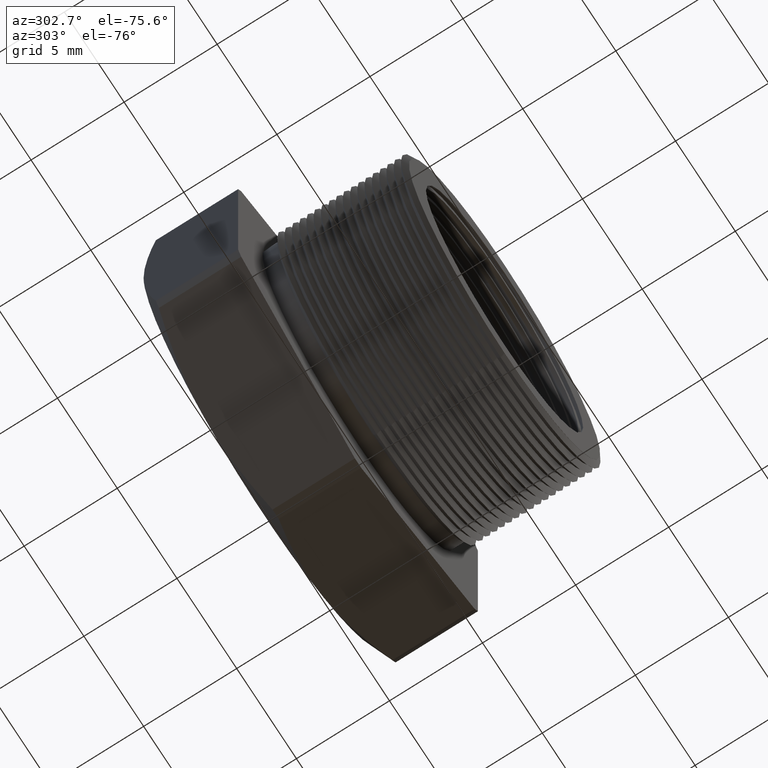
[diagram: clean part render]
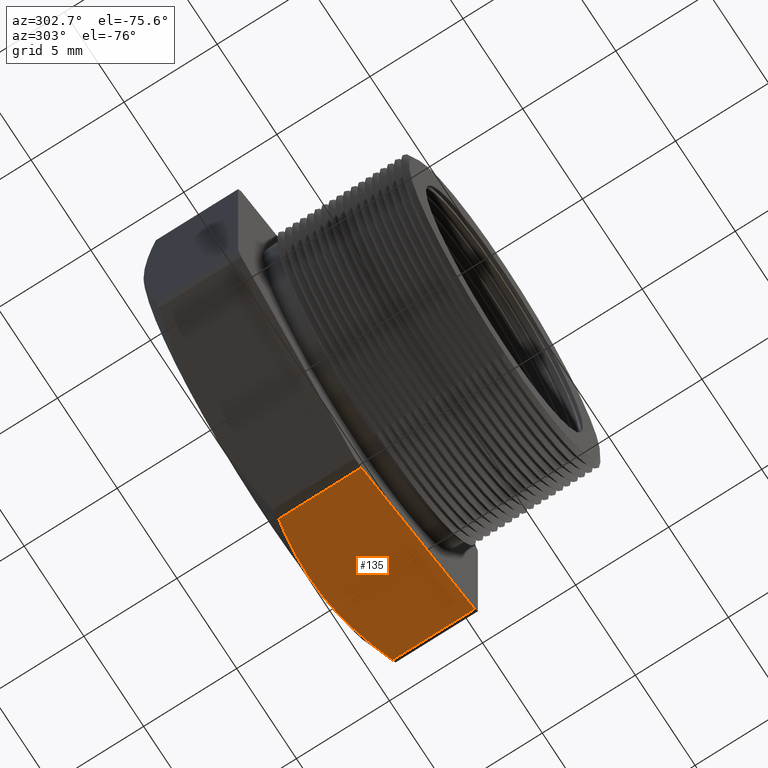
[diagram: same view with one face highlighted and labeled with its STEP entity id]
A machine part, auxiliary view. The second image highlights one B-rep face of the part: STEP entity #135.
In plain terms, the highlighted planar face has unit normal (0.5, 0, -0.866).
Its self-contained STEP definition (entity closure, byte-faithful):
#74 = EDGE_CURVE ( 'NONE', #80, #82, #4968, .T. ) ;
#80 = VERTEX_POINT ( 'NONE', #4956 ) ;
#82 = VERTEX_POINT ( 'NONE', #4951 ) ;
#108 = EDGE_CURVE ( 'NONE', #525, #597, #5048, .T. ) ;
#111 = EDGE_CURVE ( 'NONE', #80, #525, #5041, .T. ) ;
#114 = ORIENTED_EDGE ( 'NONE', *, *, #108, .T. ) ;
#124 = ORIENTED_EDGE ( 'NONE', *, *, #111, .T. ) ;
#125 = ORIENTED_EDGE ( 'NONE', *, *, #74, .F. ) ;
#127 = EDGE_LOOP ( 'NONE', ( #125, #124, #114, #4287, #146 ) ) ;
#135 = ADVANCED_FACE ( 'NONE', ( #5099 ), #5098, .T. ) ;
#146 = ORIENTED_EDGE ( 'NONE', *, *, #151, .F. ) ;
#151 = EDGE_CURVE ( 'NONE', #82, #7070, #5125, .T. ) ;
#525 = VERTEX_POINT ( 'NONE', #5800 ) ;
#597 = VERTEX_POINT ( 'NONE', #5966 ) ;
#1512 = DIRECTION ( 'NONE',  ( 0.0000000000000000000, 1.000000000000000000, 0.0000000000000000000 ) ) ;
#1513 = VECTOR ( 'NONE', #1512, 39.37007874015748100 ) ;
#1514 = CARTESIAN_POINT ( 'NONE',  ( 0.3847399997329628000, 0.0000000000000000000, -0.2339769702459618400 ) ) ;
#1515 = LINE ( 'NONE', #1514, #1513 ) ;
#3412 = CARTESIAN_POINT ( 'NONE',  ( 0.3847399997329628000, 0.2075548905829479300, -0.2339769702459618400 ) ) ;
#4287 = ORIENTED_EDGE ( 'NONE', *, *, #4288, .F. ) ;
#4288 = EDGE_CURVE ( 'NONE', #7070, #597, #1515, .T. ) ;
#4951 = CARTESIAN_POINT ( 'NONE',  ( 0.01026000026703718800, 0.2075548905829479300, -0.4501830987437449000 ) ) ;
#4956 = CARTESIAN_POINT ( 'NONE',  ( 0.01026000026703718900, 0.3817680770869766900, -0.4501830987437449000 ) ) ;
#4965 = DIRECTION ( 'NONE',  ( -0.0000000000000000000, -1.000000000000000000, -0.0000000000000000000 ) ) ;
#4966 = VECTOR ( 'NONE', #4965, 39.37007874015748100 ) ;
#4967 = CARTESIAN_POINT ( 'NONE',  ( 0.01026000026703716000, 0.0000000000000000000, -0.4501830987437447900 ) ) ;
#4968 = LINE ( 'NONE', #4967, #4966 ) ;
#5034 = CARTESIAN_POINT ( 'NONE',  ( 0.1974999999999999800, 0.4075548905829479200, -0.3420800344948533600 ) ) ;
#5035 = CARTESIAN_POINT ( 'NONE',  ( 0.1660817377447929800, 0.4075548905829479200, -0.3602193766653674100 ) ) ;
#5036 = CARTESIAN_POINT ( 'NONE',  ( 0.1347800776656142300, 0.4051865378565922500, -0.3782913985381634000 ) ) ;
#5037 = CARTESIAN_POINT ( 'NONE',  ( 0.07238150130182609300, 0.3962912005447678500, -0.4143172333988460700 ) ) ;
#5038 = CARTESIAN_POINT ( 'NONE',  ( 0.04128338948296786400, 0.3897884989263424300, -0.4322717366287527300 ) ) ;
#5039 = CARTESIAN_POINT ( 'NONE',  ( 0.01026000026703718900, 0.3817680770869766900, -0.4501830987437449000 ) ) ;
#5041 = B_SPLINE_CURVE_WITH_KNOTS ( 'NONE', 3,
 ( #5039, #5038, #5037, #5036, #5035, #5034 ),
 .UNSPECIFIED., .F., .F.,
 ( 4, 2, 4 ),
 ( 2.335025902592792600E-007, 0.002760212844509911400, 0.005520192186429562900 ),
 .UNSPECIFIED. ) ;
#5042 = CARTESIAN_POINT ( 'NONE',  ( 0.3847399997329629100, 0.3817680770869766300, -0.2339769702459618100 ) ) ;
#5043 = CARTESIAN_POINT ( 'NONE',  ( 0.3538644116588919300, 0.3897502881590465000, -0.2518029993319145800 ) ) ;
#5044 = CARTESIAN_POINT ( 'NONE',  ( 0.3227431943461728800, 0.3962764420413619200, -0.2697708425249217800 ) ) ;
#5045 = CARTESIAN_POINT ( 'NONE',  ( 0.2599588776186195200, 0.4052207272773963300, -0.3060193846884615200 ) ) ;
#5046 = CARTESIAN_POINT ( 'NONE',  ( 0.2286719793528691200, 0.4075548905829479200, -0.3240828838243010600 ) ) ;
#5047 = CARTESIAN_POINT ( 'NONE',  ( 0.1974999999999999800, 0.4075548905829479200, -0.3420800344948533600 ) ) ;
#5048 = B_SPLINE_CURVE_WITH_KNOTS ( 'NONE', 3,
 ( #5047, #5046, #5045, #5044, #5043, #5042 ),
 .UNSPECIFIED., .F., .F.,
 ( 4, 2, 4 ),
 ( 0.005520192186429562900, 0.008258536476824110100, 0.01099688076721865400 ),
 .UNSPECIFIED. ) ;
#5093 = DIRECTION ( 'NONE',  ( -0.8660254037844388200, 0.0000000000000000000, -0.4999999999999998300 ) ) ;
#5094 = DIRECTION ( 'NONE',  ( 0.4999999999999998300, 0.0000000000000000000, -0.8660254037844388200 ) ) ;
#5095 = AXIS2_PLACEMENT_3D ( 'NONE', #5097, #5094, #5093 ) ;
#5097 = CARTESIAN_POINT ( 'NONE',  ( 1.446412442642387900E-016, 0.4075548905829479700, -0.4561067126598043500 ) ) ;
#5098 = PLANE ( 'NONE',  #5095 ) ;
#5099 = FACE_OUTER_BOUND ( 'NONE', #127, .T. ) ;
#5122 = DIRECTION ( 'NONE',  ( 0.8660254037844388200, 0.0000000000000000000, 0.4999999999999998300 ) ) ;
#5123 = VECTOR ( 'NONE', #5122, 39.37007874015748100 ) ;
#5124 = CARTESIAN_POINT ( 'NONE',  ( 0.4337500000000000200, 0.2075548905829479300, -0.2056810333988043400 ) ) ;
#5125 = LINE ( 'NONE', #5124, #5123 ) ;
#5800 = CARTESIAN_POINT ( 'NONE',  ( 0.1974999999999999800, 0.4075548905829479200, -0.3420800344948533600 ) ) ;
#5966 = CARTESIAN_POINT ( 'NONE',  ( 0.3847399997329629100, 0.3817680770869766300, -0.2339769702459618100 ) ) ;
#7070 = VERTEX_POINT ( 'NONE', #3412 ) ;